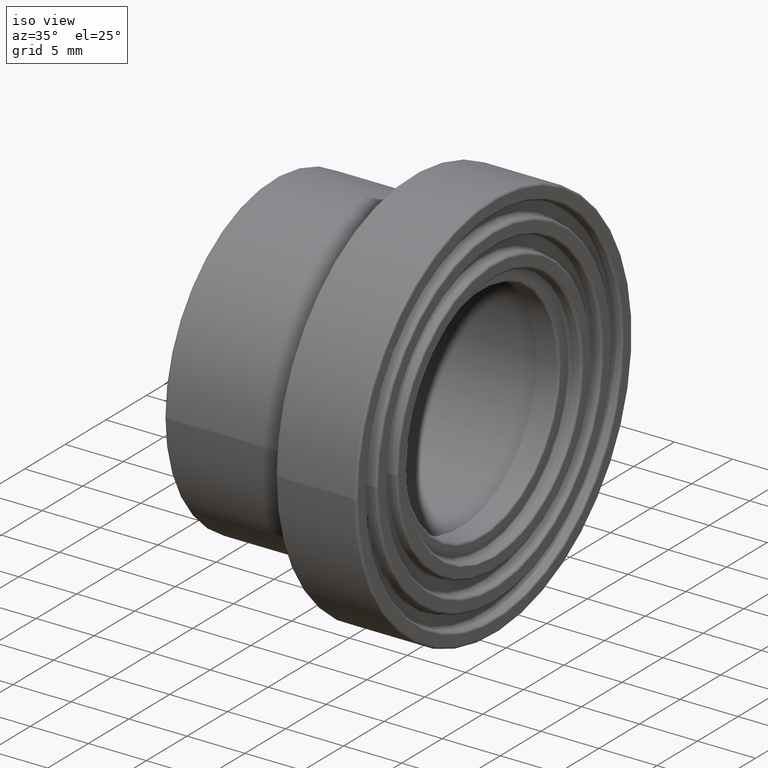
[diagram: clean part render]
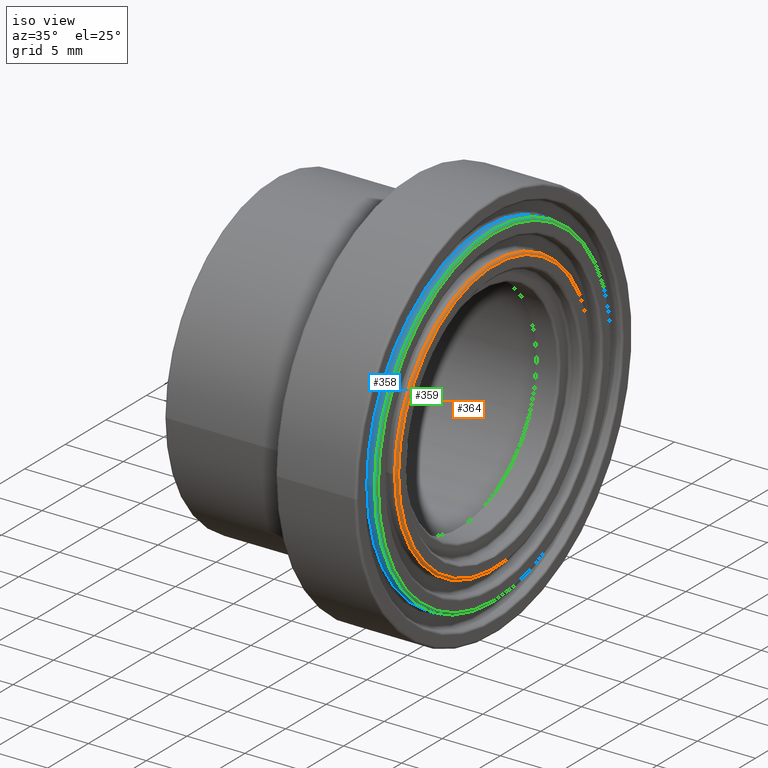
[diagram: same view with three faces highlighted in distinct colors, each labeled with its STEP entity id]
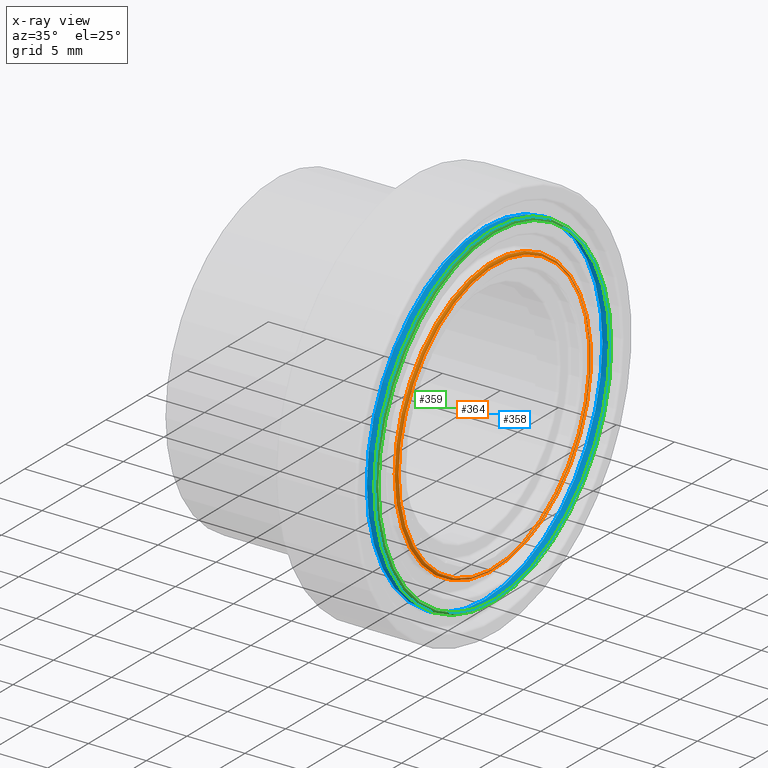
[diagram: x-ray of the same camera — body ghosted, the three highlighted faces saturated]
A machine part, iso view with three faces highlighted in distinct colors.
The next image is the same camera in x-ray (body ghosted, the three faces saturated) — at least one of them is partly hidden behind the body in this view.
Their STEP definitions:

[orange] entity #364 — the highlighted toroidal blend (fillet) surface has major radius 11.8 mm and minor (blend) radius 0.2 mm.
#52=FACE_BOUND('',#138,.T.);
#85=FACE_OUTER_BOUND('',#137,.T.);
#137=EDGE_LOOP('',(#302));
#138=EDGE_LOOP('',(#303));
#172=CIRCLE('',#394,11.8);
#187=CIRCLE('',#422,12.);
#205=VERTEX_POINT('',#602);
#220=VERTEX_POINT('',#645);
#238=EDGE_CURVE('',#205,#205,#172,.T.);
#253=EDGE_CURVE('',#220,#220,#187,.T.);
#302=ORIENTED_EDGE('',*,*,#238,.T.);
#303=ORIENTED_EDGE('',*,*,#253,.T.);
#338=TOROIDAL_SURFACE('',#421,11.8,0.2);
#364=ADVANCED_FACE('',(#85,#52),#338,.T.);
#394=AXIS2_PLACEMENT_3D('',#603,#476,#477);
#421=AXIS2_PLACEMENT_3D('',#644,#530,#531);
#422=AXIS2_PLACEMENT_3D('',#646,#532,#533);
#476=DIRECTION('center_axis',(-1.,0.,0.));
#477=DIRECTION('ref_axis',(0.,1.,6.12323399573676E-17));
#530=DIRECTION('center_axis',(-1.,0.,0.));
#531=DIRECTION('ref_axis',(0.,0.,1.));
#532=DIRECTION('center_axis',(1.,0.,0.));
#533=DIRECTION('ref_axis',(0.,1.,6.12323399573677E-17));
#602=CARTESIAN_POINT('',(19.,-11.8,7.22541611496938E-16));
#603=CARTESIAN_POINT('Origin',(19.,0.,0.));
#644=CARTESIAN_POINT('Origin',(18.8,0.,0.));
#645=CARTESIAN_POINT('',(18.8,-12.,-2.20436423846523E-15));
#646=CARTESIAN_POINT('Origin',(18.8,0.,0.));

[blue] entity #358 — the highlighted cylindrical surface (bore or boss wall) has radius 14.5 mm, axis along (-1, 0, 0).
#18=CYLINDRICAL_SURFACE('',#408,14.5);
#46=FACE_BOUND('',#126,.T.);
#79=FACE_OUTER_BOUND('',#125,.T.);
#125=EDGE_LOOP('',(#290));
#126=EDGE_LOOP('',(#291));
#179=CIRCLE('',#407,14.5);
#180=CIRCLE('',#409,14.5);
#212=VERTEX_POINT('',#622);
#213=VERTEX_POINT('',#625);
#245=EDGE_CURVE('',#212,#212,#179,.T.);
#246=EDGE_CURVE('',#213,#213,#180,.T.);
#290=ORIENTED_EDGE('',*,*,#246,.F.);
#291=ORIENTED_EDGE('',*,*,#245,.F.);
#358=ADVANCED_FACE('',(#79,#46),#18,.T.);
#407=AXIS2_PLACEMENT_3D('',#623,#502,#503);
#408=AXIS2_PLACEMENT_3D('',#624,#504,#505);
#409=AXIS2_PLACEMENT_3D('',#626,#506,#507);
#502=DIRECTION('center_axis',(-1.,0.,0.));
#503=DIRECTION('ref_axis',(0.,1.,6.12323399573677E-17));
#504=DIRECTION('center_axis',(-1.,0.,0.));
#505=DIRECTION('ref_axis',(0.,-1.,0.));
#506=DIRECTION('center_axis',(1.,0.,0.));
#507=DIRECTION('ref_axis',(0.,1.,6.12323399573677E-17));
#622=CARTESIAN_POINT('',(18.15,-14.5,8.87868929381831E-16));
#623=CARTESIAN_POINT('Origin',(18.15,0.,0.));
#624=CARTESIAN_POINT('Origin',(18.475,0.,0.));
#625=CARTESIAN_POINT('',(18.8,-14.5,-2.66360678814549E-15));
#626=CARTESIAN_POINT('Origin',(18.8,0.,0.));

[green] entity #359 — the highlighted toroidal blend (fillet) surface has major radius 14.3 mm and minor (blend) radius 0.2 mm.
#47=FACE_BOUND('',#128,.T.);
#80=FACE_OUTER_BOUND('',#127,.T.);
#127=EDGE_LOOP('',(#292));
#128=EDGE_LOOP('',(#293));
#180=CIRCLE('',#409,14.5);
#181=CIRCLE('',#411,14.3);
#213=VERTEX_POINT('',#625);
#214=VERTEX_POINT('',#628);
#246=EDGE_CURVE('',#213,#213,#180,.T.);
#247=EDGE_CURVE('',#214,#214,#181,.T.);
#292=ORIENTED_EDGE('',*,*,#247,.T.);
#293=ORIENTED_EDGE('',*,*,#246,.T.);
#336=TOROIDAL_SURFACE('',#410,14.3,0.2);
#359=ADVANCED_FACE('',(#80,#47),#336,.T.);
#409=AXIS2_PLACEMENT_3D('',#626,#506,#507);
#410=AXIS2_PLACEMENT_3D('',#627,#508,#509);
#411=AXIS2_PLACEMENT_3D('',#629,#510,#511);
#506=DIRECTION('center_axis',(1.,0.,0.));
#507=DIRECTION('ref_axis',(0.,1.,6.12323399573677E-17));
#508=DIRECTION('center_axis',(-1.,0.,0.));
#509=DIRECTION('ref_axis',(0.,0.,1.));
#510=DIRECTION('center_axis',(-1.,0.,0.));
#511=DIRECTION('ref_axis',(0.,1.,6.12323399573676E-17));
#625=CARTESIAN_POINT('',(18.8,-14.5,-2.66360678814549E-15));
#626=CARTESIAN_POINT('Origin',(18.8,0.,0.));
#627=CARTESIAN_POINT('Origin',(18.8,0.,0.));
#628=CARTESIAN_POINT('',(19.,-14.3,8.75622461390357E-16));
#629=CARTESIAN_POINT('Origin',(19.,0.,0.));